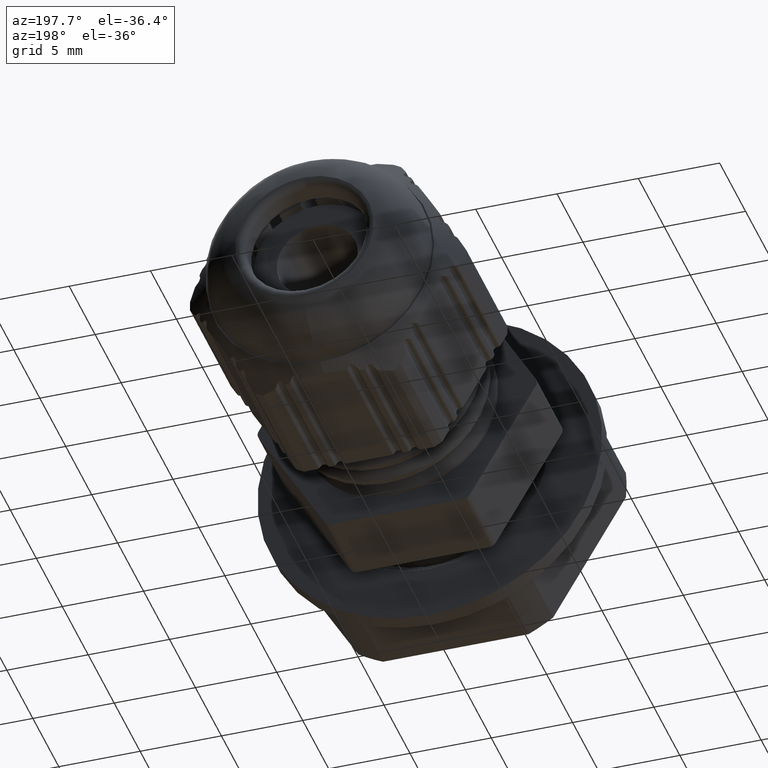
[diagram: clean part render]
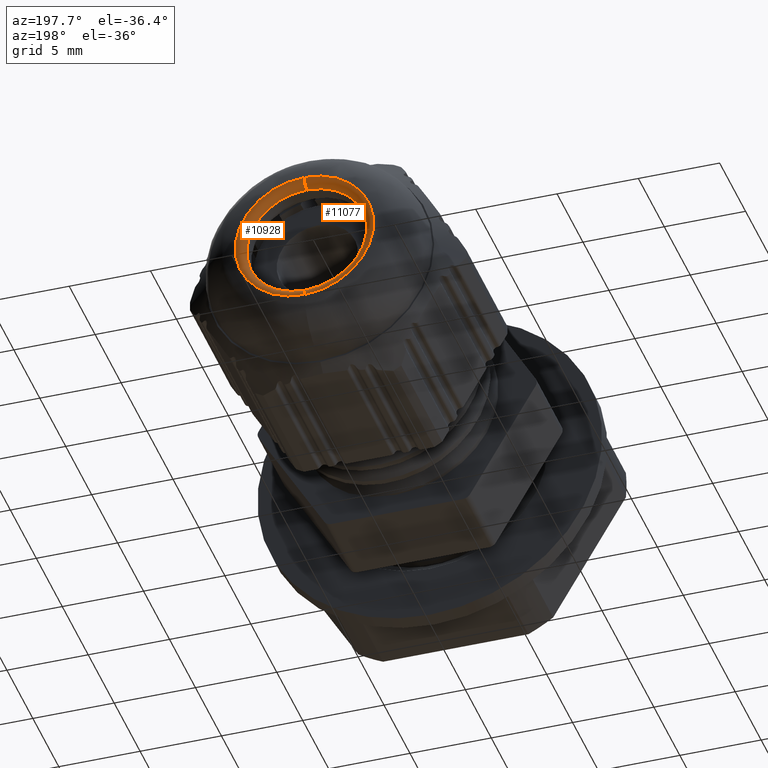
[diagram: same view with one multi-face feature highlighted, each face labeled with its STEP entity id]
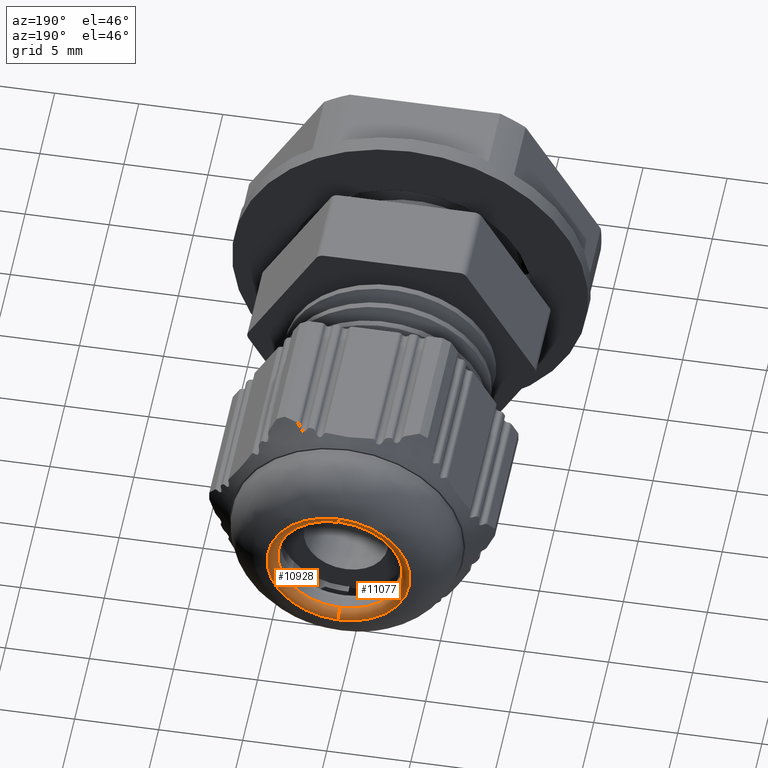
[diagram: same view with one multi-face feature highlighted, each face labeled with its STEP entity id]
A machine part, auxiliary view. The highlighted faces form ONE feature: a constant-radius fillet chain: 2 tangent blend faces with common blend radius 0.5 mm. The faces share edges in the B-rep.
A second angle (auxiliary view) of the same feature is appended — it is thin or edge-on in the first view.
Their STEP definitions:
[1] entity #11077 (Torus):
#2452 = DIRECTION ( 'NONE',  ( 1.000000000000000000, 0.0000000000000000000, 1.224646799147353200E-016 ) ) ;
#2453 = DIRECTION ( 'NONE',  ( 1.224646799147352700E-016, 0.0000000000000000000, -1.000000000000000000 ) ) ;
#2456 = CARTESIAN_POINT ( 'NONE',  ( 7.409113134841490500E-016, 15.51534099267845000, -4.200000000000002800 ) ) ;
#2634 = CARTESIAN_POINT ( 'NONE',  ( 1.030992093670466200E-017, 16.01172793851808500, 2.509081804539074100E-016 ) ) ;
#2646 = DIRECTION ( 'NONE',  ( -3.461654603367781400E-018, -1.000000000000000000, 4.071973697690425000E-016 ) ) ;
#2647 = DIRECTION ( 'NONE',  ( 0.0000000000000000000, 0.0000000000000000000, 1.000000000000000000 ) ) ;
#2650 = DIRECTION ( 'NONE',  ( -1.000000000000000000, -0.0000000000000000000, 0.0000000000000000000 ) ) ;
#2657 = DIRECTION ( 'NONE',  ( 0.0000000000000000000, 0.0000000000000000000, 1.000000000000000000 ) ) ;
#2659 = CARTESIAN_POINT ( 'NONE',  ( 2.265596578422603100E-016, 15.51534099267845000, 4.200000000000002800 ) ) ;
#2675 = DIRECTION ( 'NONE',  ( 0.0000000000000000000, 0.0000000000000000000, 1.000000000000000000 ) ) ;
#2700 = CARTESIAN_POINT ( 'NONE',  ( 0.0000000000000000000, 15.51534099267845000, 0.0000000000000000000 ) ) ;
#2716 = DIRECTION ( 'NONE',  ( -0.0000000000000000000, -1.000000000000000000, -0.0000000000000000000 ) ) ;
#5270 = CARTESIAN_POINT ( 'NONE',  ( 2.265596578422603100E-016, 15.51534099267845000, 0.0000000000000000000 ) ) ;
#5283 = FACE_OUTER_BOUND ( 'NONE', #12839, .T. ) ;
#5298 = DIRECTION ( 'NONE',  ( 0.0000000000000000000, 0.0000000000000000000, 1.000000000000000000 ) ) ;
#5313 = DIRECTION ( 'NONE',  ( -0.0000000000000000000, 1.000000000000000000, 0.0000000000000000000 ) ) ;
#9868 = CARTESIAN_POINT ( 'NONE',  ( 0.0000000000000000000, 15.51534099267845000, 3.699999999999999700 ) ) ;
#9955 = CARTESIAN_POINT ( 'NONE',  ( 7.139690839029068900E-016, 15.51534099267845000, -3.699999999999999700 ) ) ;
#10202 = CARTESIAN_POINT ( 'NONE',  ( 7.482591942790342800E-016, 16.01172793851808500, -4.260000000000013100 ) ) ;
#10250 = CARTESIAN_POINT ( 'NONE',  ( 2.265596578422603100E-016, 16.01172793851808500, 4.259999999999998000 ) ) ;
#10616 = EDGE_CURVE ( 'NONE', #13099, #12451, #13826, .T. ) ;
#10664 = EDGE_CURVE ( 'NONE', #13110, #12410, #13845, .T. ) ;
#10670 = EDGE_CURVE ( 'NONE', #13110, #13099, #13805, .T. ) ;
#10682 = EDGE_CURVE ( 'NONE', #12410, #12451, #13869, .T. ) ;
#11077 = ADVANCED_FACE ( 'NONE', ( #5283 ), #14259, .T. ) ;
#12410 = VERTEX_POINT ( 'NONE', #9868 ) ;
#12451 = VERTEX_POINT ( 'NONE', #9955 ) ;
#12839 = EDGE_LOOP ( 'NONE', ( #14628, #14614, #14608, #14665 ) ) ;
#13099 = VERTEX_POINT ( 'NONE', #10202 ) ;
#13110 = VERTEX_POINT ( 'NONE', #10250 ) ;
#13805 = CIRCLE ( 'NONE', #13809, 4.259999999999999800 ) ;
#13809 = AXIS2_PLACEMENT_3D ( 'NONE', #2634, #2646, #2647 ) ;
#13824 = AXIS2_PLACEMENT_3D ( 'NONE', #2456, #2452, #2453 ) ;
#13826 = CIRCLE ( 'NONE', #13824, 0.5000000000000022200 ) ;
#13845 = CIRCLE ( 'NONE', #13858, 0.5000000000000022200 ) ;
#13858 = AXIS2_PLACEMENT_3D ( 'NONE', #2659, #2650, #2657 ) ;
#13869 = CIRCLE ( 'NONE', #13883, 3.699999999999999700 ) ;
#13883 = AXIS2_PLACEMENT_3D ( 'NONE', #2700, #2716, #2675 ) ;
#14259 = TOROIDAL_SURFACE ( 'NONE', #14264, 4.200000000000002800, 0.5000000000000022200 ) ;
#14264 = AXIS2_PLACEMENT_3D ( 'NONE', #5270, #5313, #5298 ) ;
#14608 = ORIENTED_EDGE ( 'NONE', *, *, #10664, .T. ) ;
#14614 = ORIENTED_EDGE ( 'NONE', *, *, #10670, .F. ) ;
#14628 = ORIENTED_EDGE ( 'NONE', *, *, #10616, .F. ) ;
#14665 = ORIENTED_EDGE ( 'NONE', *, *, #10682, .T. ) ;
[2] entity #10928 (Torus):
#2452 = DIRECTION ( 'NONE',  ( 1.000000000000000000, 0.0000000000000000000, 1.224646799147353200E-016 ) ) ;
#2453 = DIRECTION ( 'NONE',  ( 1.224646799147352700E-016, 0.0000000000000000000, -1.000000000000000000 ) ) ;
#2456 = CARTESIAN_POINT ( 'NONE',  ( 7.409113134841490500E-016, 15.51534099267845000, -4.200000000000002800 ) ) ;
#2536 = DIRECTION ( 'NONE',  ( -3.461654603367781400E-018, -1.000000000000000000, 4.071973697690425000E-016 ) ) ;
#2545 = CARTESIAN_POINT ( 'NONE',  ( 1.030992093670466200E-017, 16.01172793851808500, 2.509081804539074100E-016 ) ) ;
#2549 = DIRECTION ( 'NONE',  ( 0.0000000000000000000, 0.0000000000000000000, 1.000000000000000000 ) ) ;
#2642 = CARTESIAN_POINT ( 'NONE',  ( 0.0000000000000000000, 15.51534099267845000, 0.0000000000000000000 ) ) ;
#2644 = DIRECTION ( 'NONE',  ( -0.0000000000000000000, -1.000000000000000000, -0.0000000000000000000 ) ) ;
#2650 = DIRECTION ( 'NONE',  ( -1.000000000000000000, -0.0000000000000000000, 0.0000000000000000000 ) ) ;
#2657 = DIRECTION ( 'NONE',  ( 0.0000000000000000000, 0.0000000000000000000, 1.000000000000000000 ) ) ;
#2659 = CARTESIAN_POINT ( 'NONE',  ( 2.265596578422603100E-016, 15.51534099267845000, 4.200000000000002800 ) ) ;
#2669 = DIRECTION ( 'NONE',  ( 0.0000000000000000000, 0.0000000000000000000, 1.000000000000000000 ) ) ;
#4240 = CARTESIAN_POINT ( 'NONE',  ( 2.265596578422603100E-016, 15.51534099267845000, 0.0000000000000000000 ) ) ;
#4258 = DIRECTION ( 'NONE',  ( -0.0000000000000000000, 1.000000000000000000, 0.0000000000000000000 ) ) ;
#4271 = FACE_OUTER_BOUND ( 'NONE', #12827, .T. ) ;
#4280 = DIRECTION ( 'NONE',  ( 0.0000000000000000000, 0.0000000000000000000, 1.000000000000000000 ) ) ;
#9868 = CARTESIAN_POINT ( 'NONE',  ( 0.0000000000000000000, 15.51534099267845000, 3.699999999999999700 ) ) ;
#9955 = CARTESIAN_POINT ( 'NONE',  ( 7.139690839029068900E-016, 15.51534099267845000, -3.699999999999999700 ) ) ;
#10202 = CARTESIAN_POINT ( 'NONE',  ( 7.482591942790342800E-016, 16.01172793851808500, -4.260000000000013100 ) ) ;
#10250 = CARTESIAN_POINT ( 'NONE',  ( 2.265596578422603100E-016, 16.01172793851808500, 4.259999999999998000 ) ) ;
#10616 = EDGE_CURVE ( 'NONE', #13099, #12451, #13826, .T. ) ;
#10642 = EDGE_CURVE ( 'NONE', #13099, #13110, #13819, .T. ) ;
#10660 = EDGE_CURVE ( 'NONE', #12451, #12410, #13834, .T. ) ;
#10664 = EDGE_CURVE ( 'NONE', #13110, #12410, #13845, .T. ) ;
#10928 = ADVANCED_FACE ( 'NONE', ( #4271 ), #14097, .T. ) ;
#12410 = VERTEX_POINT ( 'NONE', #9868 ) ;
#12451 = VERTEX_POINT ( 'NONE', #9955 ) ;
#12827 = EDGE_LOOP ( 'NONE', ( #13505, #13506, #13530, #13504 ) ) ;
#13099 = VERTEX_POINT ( 'NONE', #10202 ) ;
#13110 = VERTEX_POINT ( 'NONE', #10250 ) ;
#13504 = ORIENTED_EDGE ( 'NONE', *, *, #10664, .F. ) ;
#13505 = ORIENTED_EDGE ( 'NONE', *, *, #10642, .F. ) ;
#13506 = ORIENTED_EDGE ( 'NONE', *, *, #10616, .T. ) ;
#13530 = ORIENTED_EDGE ( 'NONE', *, *, #10660, .T. ) ;
#13819 = CIRCLE ( 'NONE', #13823, 4.259999999999999800 ) ;
#13823 = AXIS2_PLACEMENT_3D ( 'NONE', #2545, #2536, #2549 ) ;
#13824 = AXIS2_PLACEMENT_3D ( 'NONE', #2456, #2452, #2453 ) ;
#13826 = CIRCLE ( 'NONE', #13824, 0.5000000000000022200 ) ;
#13834 = CIRCLE ( 'NONE', #13841, 3.699999999999999700 ) ;
#13841 = AXIS2_PLACEMENT_3D ( 'NONE', #2642, #2644, #2669 ) ;
#13845 = CIRCLE ( 'NONE', #13858, 0.5000000000000022200 ) ;
#13858 = AXIS2_PLACEMENT_3D ( 'NONE', #2659, #2650, #2657 ) ;
#14096 = AXIS2_PLACEMENT_3D ( 'NONE', #4240, #4258, #4280 ) ;
#14097 = TOROIDAL_SURFACE ( 'NONE', #14096, 4.200000000000002800, 0.5000000000000022200 ) ;